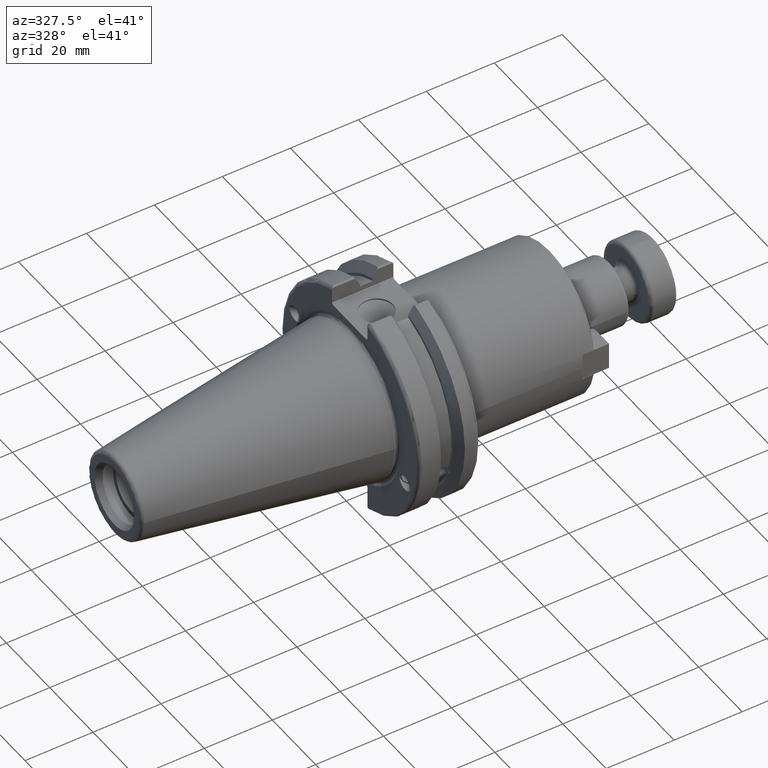
[diagram: clean part render]
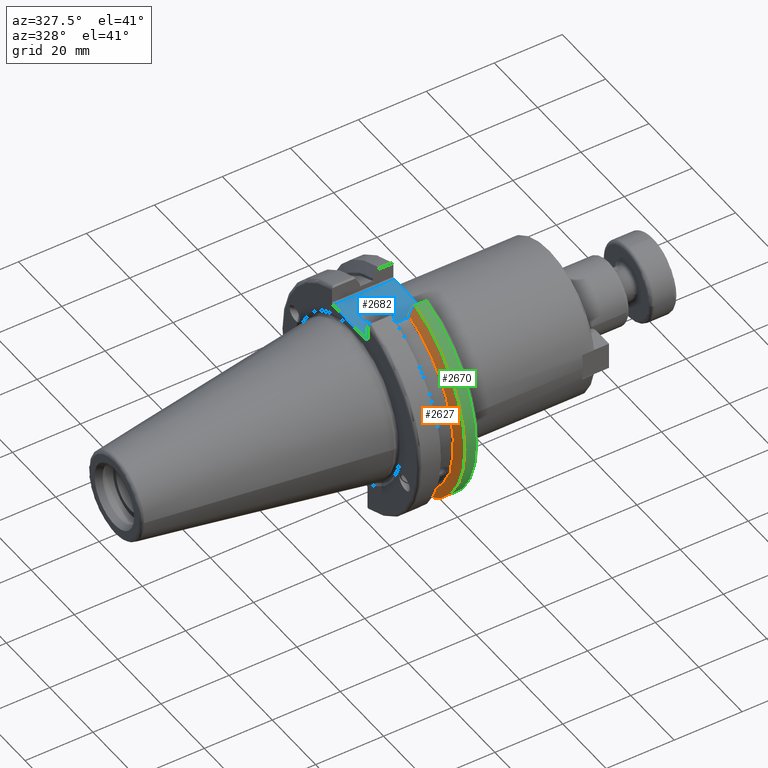
[diagram: same view with three faces highlighted in distinct colors, each labeled with its STEP entity id]
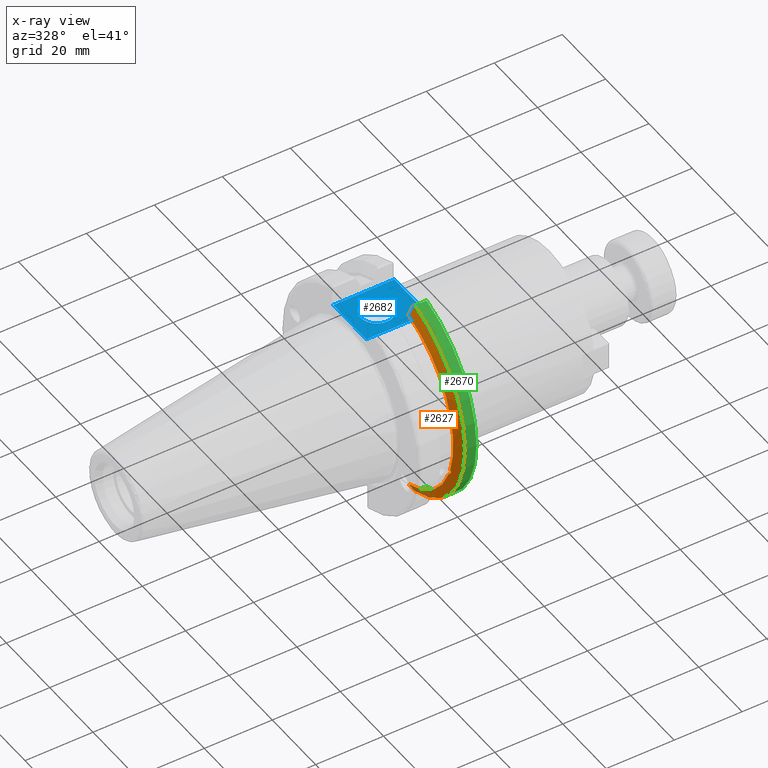
[diagram: x-ray of the same camera — body ghosted, the three highlighted faces saturated]
A machine part, auxiliary view with three faces highlighted in distinct colors.
The next image is the same camera in x-ray (body ghosted, the three faces saturated) — at least one of them is partly hidden behind the body in this view.
Their STEP definitions:

[orange] entity #2627 — the highlighted conical surface has half-angle 60 deg.
#53=(
BOUNDED_CURVE()
B_SPLINE_CURVE(2,(#4423,#4424,#4425),.UNSPECIFIED.,.F.,.F.)
B_SPLINE_CURVE_WITH_KNOTS((3,3),(0.,0.276549142795512),.UNSPECIFIED.)
CURVE()
GEOMETRIC_REPRESENTATION_ITEM()
RATIONAL_B_SPLINE_CURVE((1.,1.00095203904184,1.00031614445102))
REPRESENTATION_ITEM('')
);
#54=(
BOUNDED_CURVE()
B_SPLINE_CURVE(2,(#4427,#4428,#4429),.UNSPECIFIED.,.F.,.F.)
B_SPLINE_CURVE_WITH_KNOTS((3,3),(0.,0.0639048713675663),.UNSPECIFIED.)
CURVE()
GEOMETRIC_REPRESENTATION_ITEM()
RATIONAL_B_SPLINE_CURVE((1.,1.00028444218286,1.00047644010578))
REPRESENTATION_ITEM('')
);
#55=(
BOUNDED_CURVE()
B_SPLINE_CURVE(2,(#4433,#4434,#4435),.UNSPECIFIED.,.F.,.F.)
B_SPLINE_CURVE_WITH_KNOTS((3,3),(0.329353533631206,0.393258405001023),
 .UNSPECIFIED.)
CURVE()
GEOMETRIC_REPRESENTATION_ITEM()
RATIONAL_B_SPLINE_CURVE((1.00047644010579,1.00028444218287,1.))
REPRESENTATION_ITEM('')
);
#56=(
BOUNDED_CURVE()
B_SPLINE_CURVE(2,(#4437,#4438,#4439),.UNSPECIFIED.,.F.,.F.)
B_SPLINE_CURVE_WITH_KNOTS((3,3),(0.0550586467393779,0.331607789535852),
 .UNSPECIFIED.)
CURVE()
GEOMETRIC_REPRESENTATION_ITEM()
RATIONAL_B_SPLINE_CURVE((1.00031614444922,1.00095203903643,1.))
REPRESENTATION_ITEM('')
);
#161=CONICAL_SURFACE('',#2940,30.3546886482472,1.0471975511966);
#189=B_SPLINE_CURVE_WITH_KNOTS('',3,(#4331,#4332,#4333,#4334,#4335,#4336,
#4337,#4338),.UNSPECIFIED.,.F.,.F.,(4,2,2,4),(0.451995700189025,0.464547828547663,
0.504528771685168,0.544509714822673),.UNSPECIFIED.);
#193=B_SPLINE_CURVE_WITH_KNOTS('',3,(#4393,#4394,#4395,#4396,#4397,#4398,
#4399,#4400),.UNSPECIFIED.,.F.,.F.,(4,2,2,4),(0.544509714822673,0.584490657960178,
0.624471601097683,0.637023729456322),.UNSPECIFIED.);
#281=FACE_OUTER_BOUND('',#446,.T.);
#446=EDGE_LOOP('',(#1928,#1929,#1930,#1931,#1932,#1933,#1934,#1935,#1936));
#968=CIRCLE('',#2941,28.9593772964944);
#969=CIRCLE('',#2942,31.75);
#970=CIRCLE('',#2943,28.9593772964944);
#1128=VERTEX_POINT('',#4328);
#1129=VERTEX_POINT('',#4330);
#1136=VERTEX_POINT('',#4391);
#1142=VERTEX_POINT('',#4420);
#1143=VERTEX_POINT('',#4422);
#1144=VERTEX_POINT('',#4426);
#1145=VERTEX_POINT('',#4430);
#1146=VERTEX_POINT('',#4432);
#1147=VERTEX_POINT('',#4436);
#1420=EDGE_CURVE('',#1129,#1128,#189,.T.);
#1428=EDGE_CURVE('',#1128,#1136,#193,.T.);
#1437=EDGE_CURVE('',#1136,#1142,#968,.T.);
#1438=EDGE_CURVE('',#1142,#1143,#53,.T.);
#1439=EDGE_CURVE('',#1144,#1143,#54,.T.);
#1440=EDGE_CURVE('',#1145,#1144,#969,.T.);
#1441=EDGE_CURVE('',#1146,#1145,#55,.T.);
#1442=EDGE_CURVE('',#1146,#1147,#56,.T.);
#1443=EDGE_CURVE('',#1147,#1129,#970,.T.);
#1928=ORIENTED_EDGE('',*,*,#1420,.T.);
#1929=ORIENTED_EDGE('',*,*,#1428,.T.);
#1930=ORIENTED_EDGE('',*,*,#1437,.T.);
#1931=ORIENTED_EDGE('',*,*,#1438,.T.);
#1932=ORIENTED_EDGE('',*,*,#1439,.F.);
#1933=ORIENTED_EDGE('',*,*,#1440,.F.);
#1934=ORIENTED_EDGE('',*,*,#1441,.F.);
#1935=ORIENTED_EDGE('',*,*,#1442,.T.);
#1936=ORIENTED_EDGE('',*,*,#1443,.T.);
#2627=ADVANCED_FACE('',(#281),#161,.T.);
#2940=AXIS2_PLACEMENT_3D('',#4419,#3401,#3402);
#2941=AXIS2_PLACEMENT_3D('',#4421,#3403,#3404);
#2942=AXIS2_PLACEMENT_3D('',#4431,#3405,#3406);
#2943=AXIS2_PLACEMENT_3D('',#4440,#3407,#3408);
#3401=DIRECTION('center_axis',(1.,0.,0.));
#3402=DIRECTION('ref_axis',(0.,-1.,-1.22464679914735E-16));
#3403=DIRECTION('center_axis',(1.,0.,0.));
#3404=DIRECTION('ref_axis',(0.,0.,-1.));
#3405=DIRECTION('center_axis',(1.,0.,0.));
#3406=DIRECTION('ref_axis',(0.,0.,-1.));
#3407=DIRECTION('center_axis',(1.,0.,0.));
#3408=DIRECTION('ref_axis',(0.,0.,-1.));
#4328=CARTESIAN_POINT('',(13.2341,-27.51401829017,-10.0142836826778));
#4330=CARTESIAN_POINT('',(13.0491,-27.4956274489925,-9.09043478536246));
#4331=CARTESIAN_POINT('Ctrl Pts',(13.0491,-27.4956274489925,-9.09043478536246));
#4332=CARTESIAN_POINT('Ctrl Pts',(13.0632204071996,-27.5087667900418,-9.12860597076218));
#4333=CARTESIAN_POINT('Ctrl Pts',(13.0766929817857,-27.5206055003513,-9.16696618806878));
#4334=CARTESIAN_POINT('Ctrl Pts',(13.130081441159,-27.5642934663232,-9.32791534028656));
#4335=CARTESIAN_POINT('Ctrl Pts',(13.1682197084175,-27.5867382255984,-9.46717946402648));
#4336=CARTESIAN_POINT('Ctrl Pts',(13.2204106446058,-27.5847569104122,-9.74771639360671));
#4337=CARTESIAN_POINT('Ctrl Pts',(13.2341,-27.559599249844,-9.8890510252165));
#4338=CARTESIAN_POINT('Ctrl Pts',(13.2341,-27.51401829017,-10.0142836826778));
#4391=CARTESIAN_POINT('',(13.0491,-26.9060914640648,-10.7101715919071));
#4393=CARTESIAN_POINT('Ctrl Pts',(13.2341,-27.51401829017,-10.0142836826778));
#4394=CARTESIAN_POINT('Ctrl Pts',(13.2341,-27.4684373304961,-10.139516340139));
#4395=CARTESIAN_POINT('Ctrl Pts',(13.2204106446058,-27.3968610665578,-10.2639559818059));
#4396=CARTESIAN_POINT('Ctrl Pts',(13.1682197084175,-27.2180531796526,-10.4801333026531));
#4397=CARTESIAN_POINT('Ctrl Pts',(13.130081441159,-27.1113422433189,-10.5723885976054));
#4398=CARTESIAN_POINT('Ctrl Pts',(13.0766929817857,-26.9744191989197,-10.6676007180673));
#4399=CARTESIAN_POINT('Ctrl Pts',(13.0632204071996,-26.9406927482839,-10.6893765730703));
#4400=CARTESIAN_POINT('Ctrl Pts',(13.0491,-26.9060914640648,-10.7101715919071));
#4419=CARTESIAN_POINT('Origin',(13.8546833845378,0.,0.));
#4420=CARTESIAN_POINT('',(13.0491,-8.19,-27.7771386827498));
#4421=CARTESIAN_POINT('Origin',(13.0491,0.,0.));
#4422=CARTESIAN_POINT('',(14.3815146964874,-8.19,-30.1755016258903));
#4423=CARTESIAN_POINT('Ctrl Pts',(13.0491,-8.19,-27.7771386827498));
#4424=CARTESIAN_POINT('Ctrl Pts',(13.68773643849,-8.19,-28.9303689539956));
#4425=CARTESIAN_POINT('Ctrl Pts',(14.3815146964874,-8.19,-30.1755016258903));
#4426=CARTESIAN_POINT('',(14.6602667690756,-8.67204822802686,-30.5427254764662));
#4427=CARTESIAN_POINT('Ctrl Pts',(14.6602667690756,-8.67204822802687,-30.5427254764662));
#4428=CARTESIAN_POINT('Ctrl Pts',(14.5192085187837,-8.42917748262644,-30.357706789263));
#4429=CARTESIAN_POINT('Ctrl Pts',(14.3815146964874,-8.19,-30.1755016258903));
#4430=CARTESIAN_POINT('',(14.6602667690756,-8.67204822802685,30.5427254764662));
#4431=CARTESIAN_POINT('Origin',(14.6602667690756,0.,0.));
#4432=CARTESIAN_POINT('',(14.3815146964874,-8.19,30.1755016258903));
#4433=CARTESIAN_POINT('Ctrl Pts',(14.3815146964874,-8.19,30.1755016258903));
#4434=CARTESIAN_POINT('Ctrl Pts',(14.5192085187884,-8.42917748263465,30.3577067892692));
#4435=CARTESIAN_POINT('Ctrl Pts',(14.6602667690756,-8.67204822802686,30.5427254764662));
#4436=CARTESIAN_POINT('',(13.0491,-8.19,27.7771386827498));
#4437=CARTESIAN_POINT('Ctrl Pts',(14.3815146964874,-8.19,30.1755016258903));
#4438=CARTESIAN_POINT('Ctrl Pts',(13.687736438474,-8.19,28.9303689539668));
#4439=CARTESIAN_POINT('Ctrl Pts',(13.0491,-8.19,27.7771386827498));
#4440=CARTESIAN_POINT('Origin',(13.0491,0.,0.));

[blue] entity #2682 — the highlighted planar face has unit normal (0, 0, 1).
#231=FACE_BOUND('',#507,.T.);
#336=FACE_OUTER_BOUND('',#506,.T.);
#506=EDGE_LOOP('',(#2246,#2247,#2248,#2249));
#507=EDGE_LOOP('',(#2250));
#643=LINE('',#4700,#816);
#662=LINE('',#4854,#835);
#674=LINE('',#4899,#847);
#676=LINE('',#4902,#849);
#816=VECTOR('',#3536,10.);
#835=VECTOR('',#3587,10.);
#847=VECTOR('',#3629,10.);
#849=VECTOR('',#3633,10.);
#1006=CIRCLE('',#3038,4.7625);
#1198=VERTEX_POINT('',#4697);
#1199=VERTEX_POINT('',#4699);
#1227=VERTEX_POINT('',#4851);
#1228=VERTEX_POINT('',#4853);
#1248=VERTEX_POINT('',#4938);
#1516=EDGE_CURVE('',#1198,#1199,#643,.T.);
#1557=EDGE_CURVE('',#1227,#1228,#662,.T.);
#1578=EDGE_CURVE('',#1199,#1227,#674,.T.);
#1580=EDGE_CURVE('',#1228,#1198,#676,.T.);
#1595=EDGE_CURVE('',#1248,#1248,#1006,.T.);
#2246=ORIENTED_EDGE('',*,*,#1578,.F.);
#2247=ORIENTED_EDGE('',*,*,#1516,.F.);
#2248=ORIENTED_EDGE('',*,*,#1580,.F.);
#2249=ORIENTED_EDGE('',*,*,#1557,.F.);
#2250=ORIENTED_EDGE('',*,*,#1595,.T.);
#2552=PLANE('',#3046);
#2682=ADVANCED_FACE('',(#336,#231),#2552,.T.);
#3038=AXIS2_PLACEMENT_3D('',#4939,#3668,#3669);
#3046=AXIS2_PLACEMENT_3D('',#4948,#3685,#3686);
#3536=DIRECTION('',(0.,-1.,0.));
#3587=DIRECTION('',(0.,1.,0.));
#3629=DIRECTION('',(-1.,1.16558847729675E-16,0.));
#3633=DIRECTION('',(1.,0.,0.));
#3668=DIRECTION('center_axis',(0.,0.,-1.));
#3669=DIRECTION('ref_axis',(1.,0.,0.));
#3685=DIRECTION('center_axis',(0.,0.,1.));
#3686=DIRECTION('ref_axis',(1.,0.,0.));
#4697=CARTESIAN_POINT('',(19.05,7.69,25.));
#4699=CARTESIAN_POINT('',(19.05,-7.69,25.));
#4700=CARTESIAN_POINT('',(19.05,0.,25.));
#4851=CARTESIAN_POINT('',(1.,-7.68999999999999,25.));
#4853=CARTESIAN_POINT('',(1.,7.69,25.));
#4854=CARTESIAN_POINT('',(1.,15.875,25.));
#4899=CARTESIAN_POINT('',(7.81,-7.69,25.));
#4902=CARTESIAN_POINT('',(17.335,7.69,25.));
#4938=CARTESIAN_POINT('',(4.1966,-5.83238038093927E-16,25.));
#4939=CARTESIAN_POINT('Origin',(8.9591,0.,25.));
#4948=CARTESIAN_POINT('Origin',(14.62,0.,25.));

[green] entity #2670 — the highlighted cylindrical surface (partial cylindrical patch) has radius 31.75 mm, axis along (1, 0, 0).
#138=CYLINDRICAL_SURFACE('',#3028,31.75);
#324=FACE_OUTER_BOUND('',#494,.T.);
#494=EDGE_LOOP('',(#2194,#2195,#2196,#2197));
#682=LINE('',#4917,#855);
#683=LINE('',#4919,#856);
#855=VECTOR('',#3643,10.);
#856=VECTOR('',#3646,10.);
#969=CIRCLE('',#2942,31.75);
#991=CIRCLE('',#2996,31.75);
#1144=VERTEX_POINT('',#4426);
#1145=VERTEX_POINT('',#4430);
#1206=VERTEX_POINT('',#4725);
#1207=VERTEX_POINT('',#4734);
#1440=EDGE_CURVE('',#1145,#1144,#969,.T.);
#1525=EDGE_CURVE('',#1206,#1207,#991,.T.);
#1587=EDGE_CURVE('',#1207,#1144,#682,.T.);
#1588=EDGE_CURVE('',#1145,#1206,#683,.T.);
#2194=ORIENTED_EDGE('',*,*,#1525,.F.);
#2195=ORIENTED_EDGE('',*,*,#1588,.F.);
#2196=ORIENTED_EDGE('',*,*,#1440,.T.);
#2197=ORIENTED_EDGE('',*,*,#1587,.F.);
#2670=ADVANCED_FACE('',(#324),#138,.T.);
#2942=AXIS2_PLACEMENT_3D('',#4431,#3405,#3406);
#2996=AXIS2_PLACEMENT_3D('',#4735,#3545,#3546);
#3028=AXIS2_PLACEMENT_3D('',#4918,#3644,#3645);
#3405=DIRECTION('center_axis',(1.,0.,0.));
#3406=DIRECTION('ref_axis',(0.,0.,-1.));
#3545=DIRECTION('center_axis',(1.,0.,0.));
#3546=DIRECTION('ref_axis',(0.,-1.,1.60812264967664E-16));
#3643=DIRECTION('',(-1.,0.,0.));
#3644=DIRECTION('center_axis',(1.,0.,0.));
#3645=DIRECTION('ref_axis',(0.,-1.,1.22464679914735E-16));
#3646=DIRECTION('',(1.,0.,0.));
#4426=CARTESIAN_POINT('',(14.6602667690756,-8.67204822802686,-30.5427254764662));
#4430=CARTESIAN_POINT('',(14.6602667690756,-8.67204822802685,30.5427254764662));
#4431=CARTESIAN_POINT('Origin',(14.6602667690756,0.,0.));
#4725=CARTESIAN_POINT('',(18.05,-8.67204822802685,30.5427254764662));
#4734=CARTESIAN_POINT('',(18.05,-8.67204822802686,-30.5427254764662));
#4735=CARTESIAN_POINT('Origin',(18.05,0.,0.));
#4917=CARTESIAN_POINT('',(16.8551333845378,-8.67204822802686,-30.5427254764662));
#4918=CARTESIAN_POINT('Origin',(16.8551333845378,0.,0.));
#4919=CARTESIAN_POINT('',(16.8551333845378,-8.67204822802685,30.5427254764662));